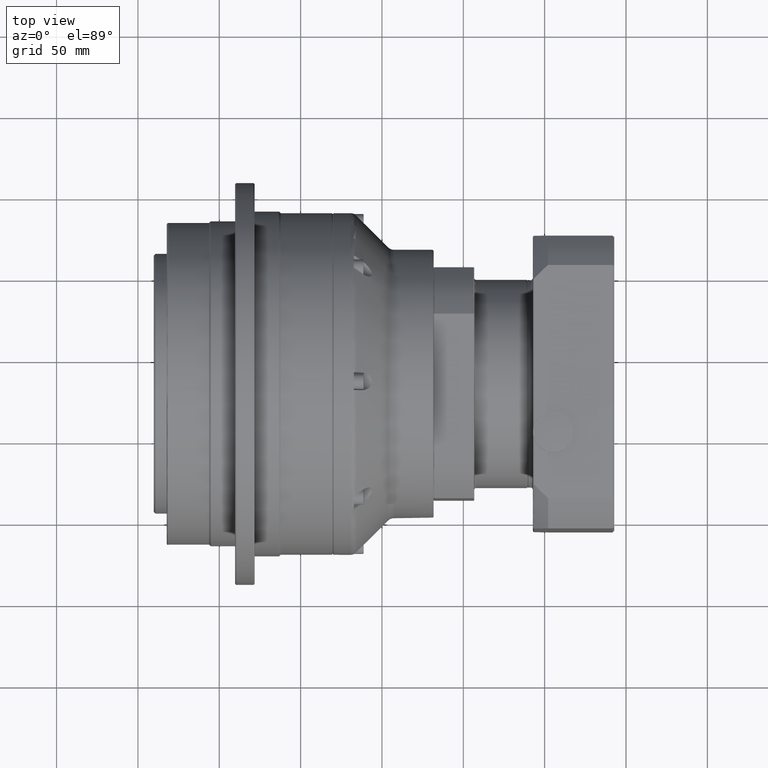
[diagram: clean part render]
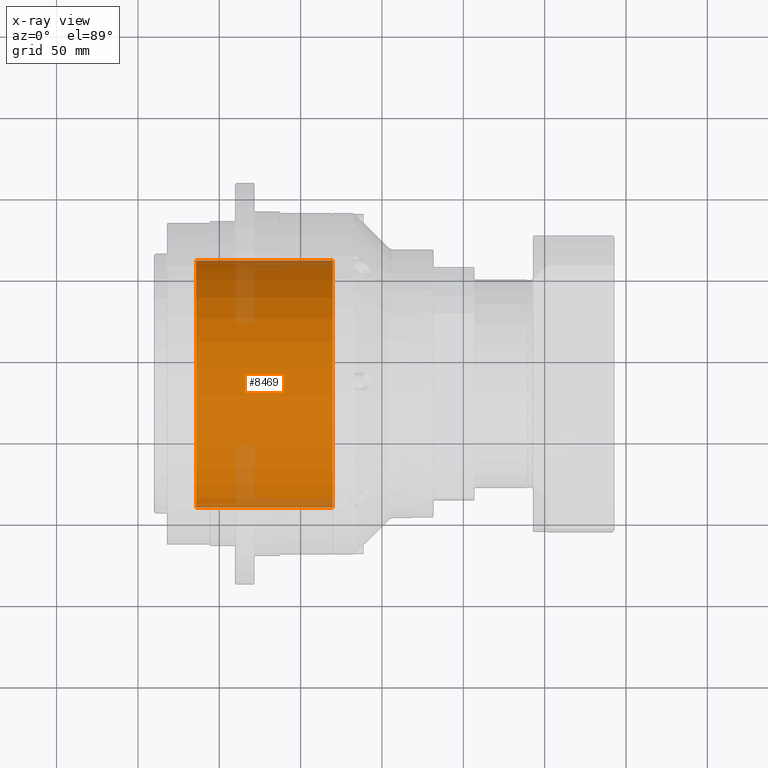
[diagram: x-ray — body ghosted, one internal face saturated and labeled with its STEP entity id]
A machine part, top view, then the same camera in x-ray: the body is ghosted and one INTERNAL B-rep face — a face not visible from any outside direction — is saturated and labeled: STEP entity #8469.
In plain terms, the highlighted cylindrical surface (bore or boss wall) has radius 76.05 mm, axis along (-1, 0, 0).
Its self-contained STEP definition (entity closure, byte-faithful):
#1603=CYLINDRICAL_SURFACE('',#9489,76.05);
#1935=FACE_BOUND('',#3374,.T.);
#2472=FACE_OUTER_BOUND('',#3373,.T.);
#3373=EDGE_LOOP('',(#7380));
#3374=EDGE_LOOP('',(#7381));
#3855=CIRCLE('',#9478,76.05);
#3856=CIRCLE('',#9480,76.05);
#4567=VERTEX_POINT('',#14967);
#4568=VERTEX_POINT('',#14970);
#5521=EDGE_CURVE('',#4567,#4567,#3855,.T.);
#5522=EDGE_CURVE('',#4568,#4568,#3856,.T.);
#7380=ORIENTED_EDGE('',*,*,#5522,.T.);
#7381=ORIENTED_EDGE('',*,*,#5521,.F.);
#8469=ADVANCED_FACE('',(#2472,#1935),#1603,.F.);
#9478=AXIS2_PLACEMENT_3D('',#14968,#11707,#11708);
#9480=AXIS2_PLACEMENT_3D('',#14971,#11711,#11712);
#9489=AXIS2_PLACEMENT_3D('',#14984,#11729,#11730);
#11707=DIRECTION('center_axis',(-1.,1.38777878078137E-16,3.00285539670118E-15));
#11708=DIRECTION('ref_axis',(3.00285539670118E-15,2.27825854217832E-15,
1.));
#11711=DIRECTION('center_axis',(-1.,-5.55111512312581E-16,3.44677613714481E-15));
#11712=DIRECTION('ref_axis',(3.00285539670118E-15,2.27825854217832E-15,
1.));
#11729=DIRECTION('center_axis',(-1.,1.38777878078137E-16,3.00285539670118E-15));
#11730=DIRECTION('ref_axis',(3.00285539670118E-15,2.27825854217832E-15,
1.));
#14967=CARTESIAN_POINT('',(69.7533127330001,-115.418937513062,97.6934180711753));
#14968=CARTESIAN_POINT('Origin',(69.7533127330003,-115.418937513062,173.743418071175));
#14970=CARTESIAN_POINT('',(-14.246687267,-115.418937513062,97.6934180711756));
#14971=CARTESIAN_POINT('Origin',(-14.2466872669997,-115.418937513062,173.743418071176));
#14984=CARTESIAN_POINT('Origin',(69.7533127330003,-115.418937513062,173.743418071175));